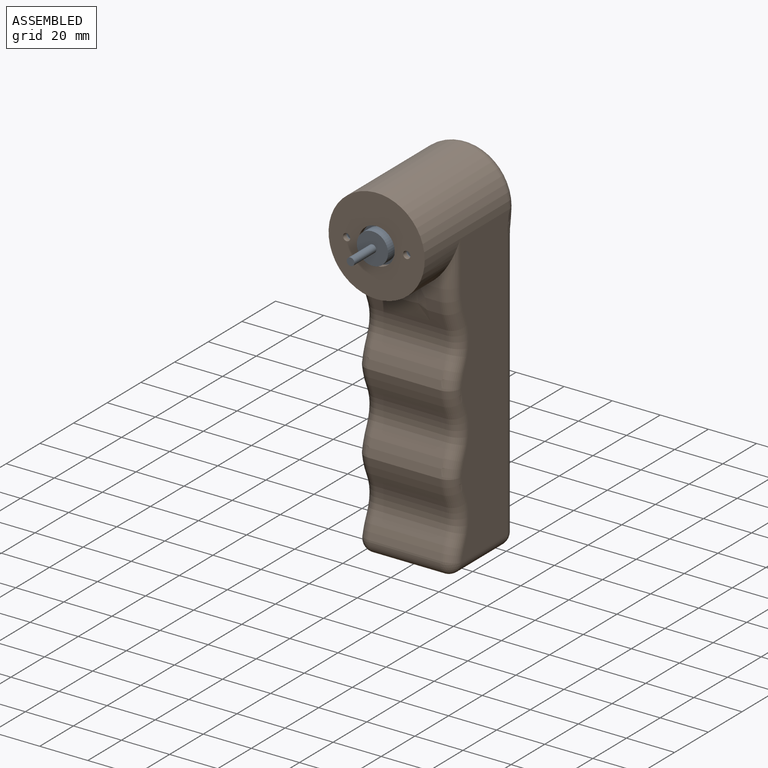
[diagram: assembled view]
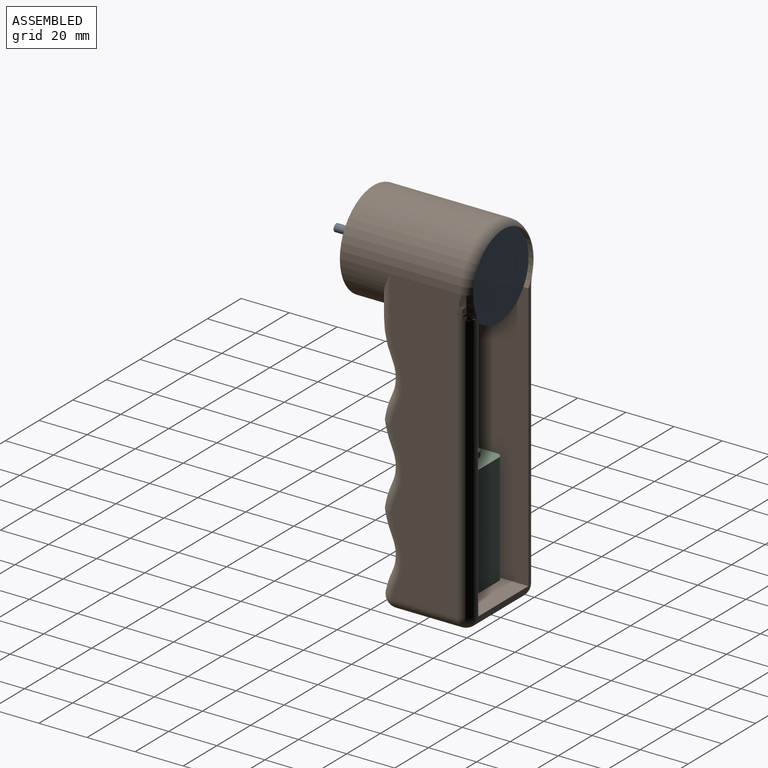
[diagram: assembled view, second angle]
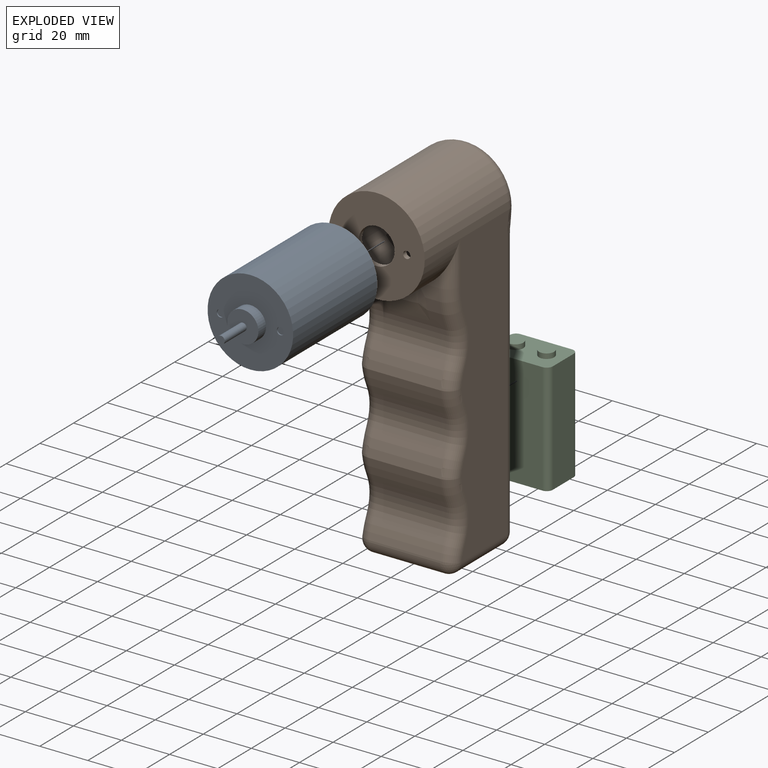
[diagram: exploded view]
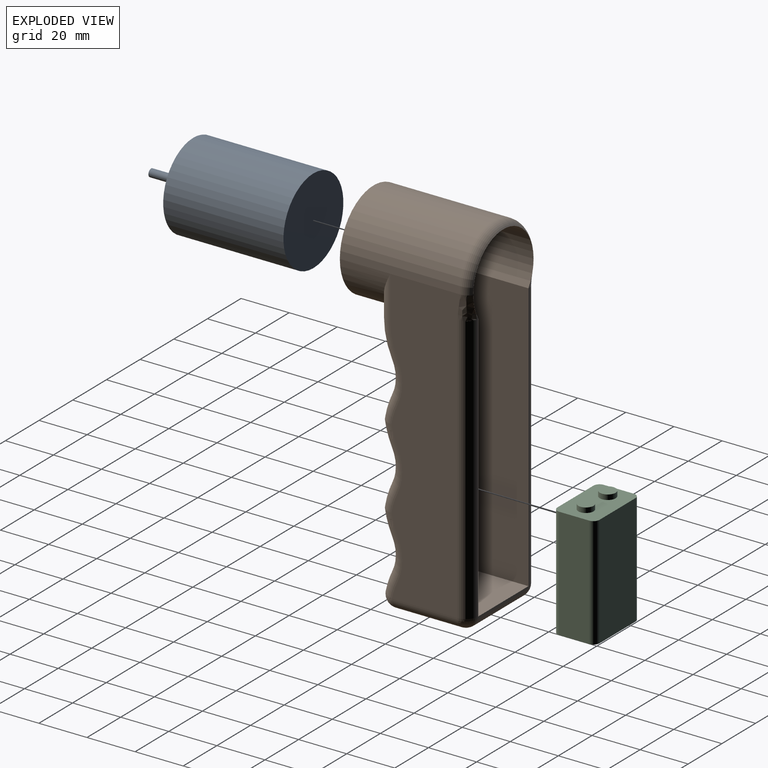
[diagram: exploded view, second angle]
ASSEMBLY  parts=3 mates=4
PART A: 11 faces, bbox 35.6x67.5x35.6 mm
  f0: cylinder r=17.8mm len=50mm, axis (0,1,0), area 5592mm2, adj f1,f2
  f1: plane 35.6x35.6mm, normal (0,-1,0), area 848.5mm2, adj f0,f3,f7,f9
  f2: plane 35.6x35.6mm, normal (0,1,0), area 995.4mm2, adj f0
  f3: cylinder r=6.5mm len=13mm, axis (0,1,0), area 183.8mm2, adj f1,f4
  f4: plane 13x13mm, normal (0,-1,0), area 124.7mm2, adj f3,f5
  f5: cylinder r=1.6mm len=13mm, axis (0,1,0), area 130.7mm2, adj f4,f6
  f6: plane 3.2x3.2mm, normal (0,-1,0), area 8mm2, adj f5
  f7: cylinder r=1.5mm len=3mm, axis (0,-1,0), area 4.7mm2, adj f1,f8
  f8: plane 3x3mm, normal (0,-1,0), area 7.1mm2, adj f7
  f9: cylinder r=1.5mm len=3mm, axis (0,-1,0), area 4.7mm2, adj f1,f10
  f10: plane 3x3mm, normal (0,-1,0), area 7.1mm2, adj f9
PART B: 60 faces, bbox 43.3x55x148.6 mm
  f0: plane 6.1x4.63mm, normal (0,-1,0), area 12.2mm2, adj f3,f22,f38
  f1: plane 6.1x4.63mm, normal (0,-1,0), area 12.2mm2, adj f3,f20,f49
  f2: plane 121.92x28.95mm, normal (-1,0,0), area 3114.8mm2, adj f3,f23,f25,f28,f38,f39,f40,f41
  f3: cylinder r=20mm len=49.92mm, axis (0,1,0), area 4192.7mm2, adj f0,f1,f2,f4,f11,f21,f27,f38
  f4: plane 40x40mm, normal (0,-1,0), area 1065.8mm2, adj f3,f7,f8,f9
  f5: cylinder r=17.95mm len=52mm, axis (0,1,0), area 4907.3mm2, adj f6,f25,f26,f27,f34,f36,f37
  f6: plane 35.9x35.9mm, normal (0,1,0), area 821.4mm2, adj f5,f7,f8,f9
  f7: cylinder r=7.5mm len=15mm, axis (0,-1,0), area 94.2mm2, adj f4,f6
  f8: cylinder r=1.5mm len=3mm, axis (0,-1,0), area 18.8mm2, adj f4,f6
  f9: cylinder r=1.5mm len=3mm, axis (0,-1,0), area 18.8mm2, adj f4,f6
  f10: plane 29.84x27.29mm, normal (0,0,-1), area 814.3mm2, adj f28,f30,f31,f32
  f11: plane 121.92x28.95mm, normal (1,0,0), area 3114.8mm2, adj f3,f24,f26,f32,f49,f50,f51,f52
  f12: cylinder r=15.24mm len=29.84mm, axis (1,0,0), area 404mm2, adj f16,f17,f46,f57
  f13: cylinder r=15.24mm len=29.84mm, axis (1,0,0), area 403.5mm2, adj f15,f19,f43,f54
  f14: cylinder r=15.24mm len=29.84mm, axis (1,0,0), area 403.5mm2, adj f18,f20,f21,f22,f40,f51
  f15: cylinder r=35.75mm len=29.84mm, axis (1,0,0), area 316mm2, adj f13,f16,f44,f55
  f16: cylinder r=35.75mm len=29.84mm, axis (1,0,0), area 316mm2, adj f12,f15,f45,f56
  f17: cylinder r=35.75mm len=29.84mm, axis (1,0,0), area 250mm2, adj f12,f30,f47,f58
  f18: cylinder r=35.75mm len=29.84mm, axis (1,0,0), area 316mm2, adj f14,f19,f41,f52
  f19: cylinder r=35.75mm len=29.84mm, axis (1,0,0), area 316mm2, adj f13,f18,f42,f53
  f20: cylinder r=35.75mm len=15.35mm, axis (1,0,0), area 96.8mm2, adj f1,f14,f21,f50
  f21: bspline ~17.64x15.35mm, area 255.1mm2, adj f3,f14,f20,f22
  f22: cylinder r=35.75mm len=15.35mm, axis (1,0,0), area 96.8mm2, adj f0,f14,f21,f39
  f23: cylinder r=5.08mm len=111.94mm, axis (0,0,-1), area 893.2mm2, adj f2,f25,f29,f36
  f24: cylinder r=5.08mm len=111.94mm, axis (0,0,1), area 893.2mm2, adj f11,f26,f33,f34
  f25: bspline ~11.76x5.5mm, area 58.5mm2, adj f2,f5,f23,f27
  f26: bspline ~11.76x5.5mm, area 58.5mm2, adj f5,f11,f24,f27
  f27: torus R=14.92mm, axis (0,1,0), area 286.9mm2, adj f3,f5,f25,f26
  f28: cylinder r=5.08mm len=27.29mm, axis (0,1,0), area 217.8mm2, adj f2,f10,f29,f48
  f29: sphere r=5.08mm, area 40.5mm2, adj f23,f28,f31
  f30: cylinder r=5.08mm len=29.84mm, axis (1,0,0), area 270mm2, adj f10,f17,f48,f59
  f31: cylinder r=5.08mm len=29.84mm, axis (1,0,0), area 238.1mm2, adj f10,f29,f33,f35
  f32: cylinder r=5.08mm len=27.29mm, axis (0,-1,0), area 217.8mm2, adj f10,f11,f33,f59
  f33: sphere r=5.08mm, area 40.5mm2, adj f24,f31,f32
  f34: plane 111.94x27.18mm, normal (-1,0,0), area 3042.3mm2, adj f5,f24,f35,f37
  f35: plane 29.84x27.18mm, normal (0,0,1), area 811mm2, adj f31,f34,f36,f37
  f36: plane 111.94x27.18mm, normal (1,0,0), area 3042.3mm2, adj f5,f23,f35,f37
  f37: plane 111.94x29.84mm, normal (0,1,0), area 3173mm2, adj f5,f34,f35,f36
  f38: cylinder r=5.08mm len=17.95mm, axis (0,0,1), area 85.3mm2, adj f0,f2,f3,f39
  f39: torus R=30.67mm, axis (1,0,0), area 120mm2, adj f2,f22,f38,f40
  f40: torus R=20.32mm, axis (1,0,0), area 121mm2, adj f2,f14,f39,f41
  f41: torus R=30.67mm, axis (1,0,0), area 76.9mm2, adj f2,f18,f40,f42
  f42: torus R=30.67mm, axis (1,0,0), area 76.9mm2, adj f2,f19,f41,f43
  f43: torus R=20.32mm, axis (1,0,0), area 121mm2, adj f2,f13,f42,f44
  f44: torus R=30.67mm, axis (1,0,0), area 76.9mm2, adj f2,f15,f43,f45
  f45: torus R=30.67mm, axis (1,0,0), area 76.9mm2, adj f2,f16,f44,f46
  f46: torus R=20.32mm, axis (1,0,0), area 121.1mm2, adj f2,f12,f45,f47
  f47: torus R=30.67mm, axis (1,0,0), area 63.4mm2, adj f2,f17,f46,f48
  f48: sphere r=5.08mm, area 44.8mm2, adj f28,f30,f47
  f49: cylinder r=5.08mm len=17.95mm, axis (0,0,-1), area 85.3mm2, adj f1,f3,f11,f50
  f50: torus R=30.67mm, axis (1,0,0), area 120mm2, adj f11,f20,f49,f51
  f51: torus R=20.32mm, axis (1,0,0), area 121mm2, adj f11,f14,f50,f52
  f52: torus R=30.67mm, axis (1,0,0), area 76.9mm2, adj f11,f18,f51,f53
  f53: torus R=30.67mm, axis (1,0,0), area 76.9mm2, adj f11,f19,f52,f54
  f54: torus R=20.32mm, axis (1,0,0), area 121mm2, adj f11,f13,f53,f55
  f55: torus R=30.67mm, axis (1,0,0), area 76.9mm2, adj f11,f15,f54,f56
  f56: torus R=30.67mm, axis (1,0,0), area 76.9mm2, adj f11,f16,f55,f57
  f57: torus R=20.32mm, axis (1,0,0), area 121.1mm2, adj f11,f12,f56,f58
  f58: torus R=30.67mm, axis (1,0,0), area 63.4mm2, adj f11,f17,f57,f59
  f59: sphere r=5.08mm, area 46mm2, adj f30,f32,f58
PART C: 14 faces, bbox 26.5x17.5x48.5 mm
  f0: plane 46.41x21.41mm, normal (0,-1,0), area 993.7mm2, adj f4,f5,f10,f13
  f1: plane 46.41x12.42mm, normal (1,0,0), area 576.4mm2, adj f4,f5,f10,f11
  f2: plane 46.41x21.41mm, normal (0,1,0), area 993.7mm2, adj f4,f5,f11,f12
  f3: plane 46.41x12.42mm, normal (-1,0,0), area 576.4mm2, adj f4,f5,f12,f13
  f4: plane 26.49x17.5mm, normal (0,0,1), area 392.6mm2, adj f0,f1,f2,f3,f6,f8,f10,f11
  f5: plane 26.49x17.5mm, normal (0,0,-1), area 458.1mm2, adj f0,f1,f2,f3,f10,f11,f12,f13
  f6: cylinder r=3.16mm len=6.32mm, axis (0,0,-1), area 41.3mm2, adj f4,f7
  f7: plane 6.32x6.32mm, normal (0,0,1), area 31.4mm2, adj f6
  f8: cylinder r=3.29mm len=6.59mm, axis (0,0,-1), area 43.1mm2, adj f4,f9
  f9: plane 6.59x6.59mm, normal (0,0,1), area 34.1mm2, adj f8
  f10: cylinder r=2.54mm len=46.41mm, axis (0,0,1), area 185.2mm2, adj f0,f1,f4,f5
  f11: cylinder r=2.54mm len=46.41mm, axis (0,0,-1), area 185.2mm2, adj f1,f2,f4,f5
  f12: cylinder r=2.54mm len=46.41mm, axis (0,0,1), area 185.2mm2, adj f2,f3,f4,f5
  f13: cylinder r=2.54mm len=46.41mm, axis (0,0,-1), area 185.2mm2, adj f0,f3,f4,f5
PLACE A rot(axis=(0,1,0),180deg) t=(-37.92,-19.41,19.73)mm
PLACE B t=(-37.92,-17.41,19.73)mm
PLACE C rot(axis=(0,0,1),180deg) t=(-38.3,-35.84,-101.39)mm
MATE fastened A.f0 <-> B.f5  axis (0,-1,0) through (-37.92,-69.41,19.73)mm
MATE planar C.f2 <-> B.f37  axis (0,-1,0) through (-38.3,-44.59,-78.19)mm
MATE cylindrical A.f9 <-> B.f9  axis (0,-1,0) through (-25.42,-69.16,19.73)mm
MATE cylindrical A.f7 <-> B.f8  axis (0,-1,0) through (-50.42,-69.16,19.73)mm
